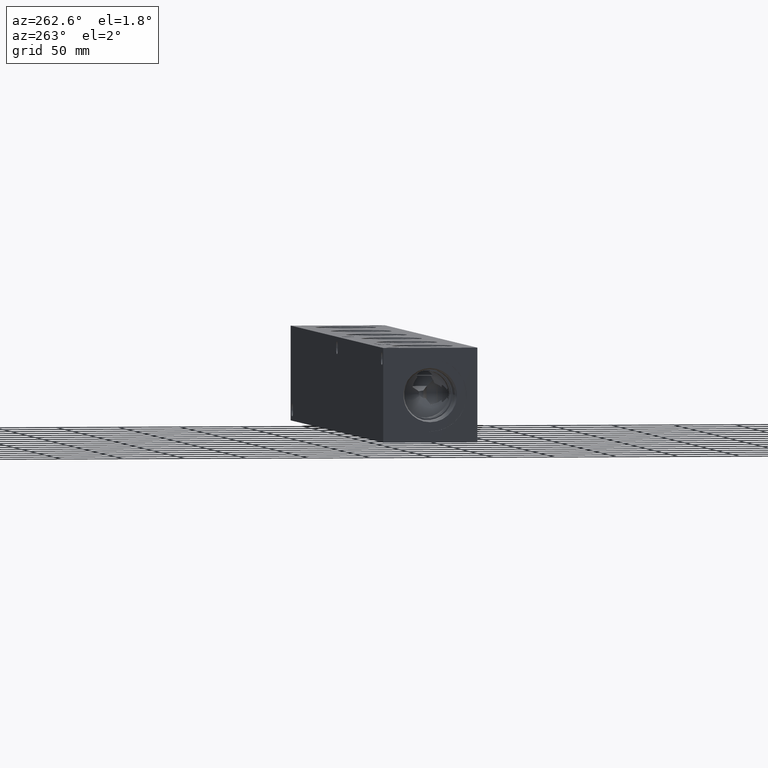
[diagram: clean part render]
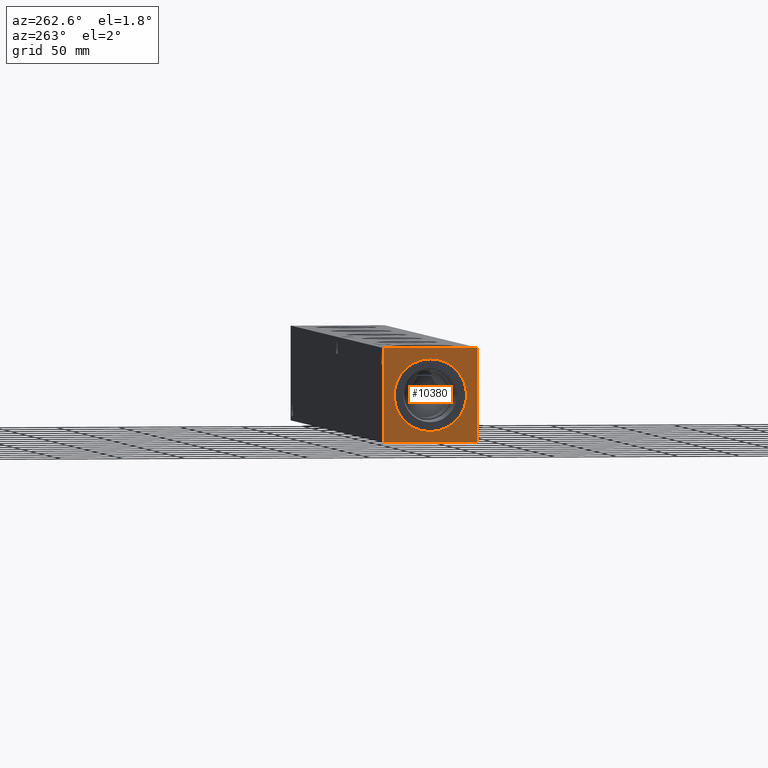
[diagram: same view with one face highlighted and labeled with its STEP entity id]
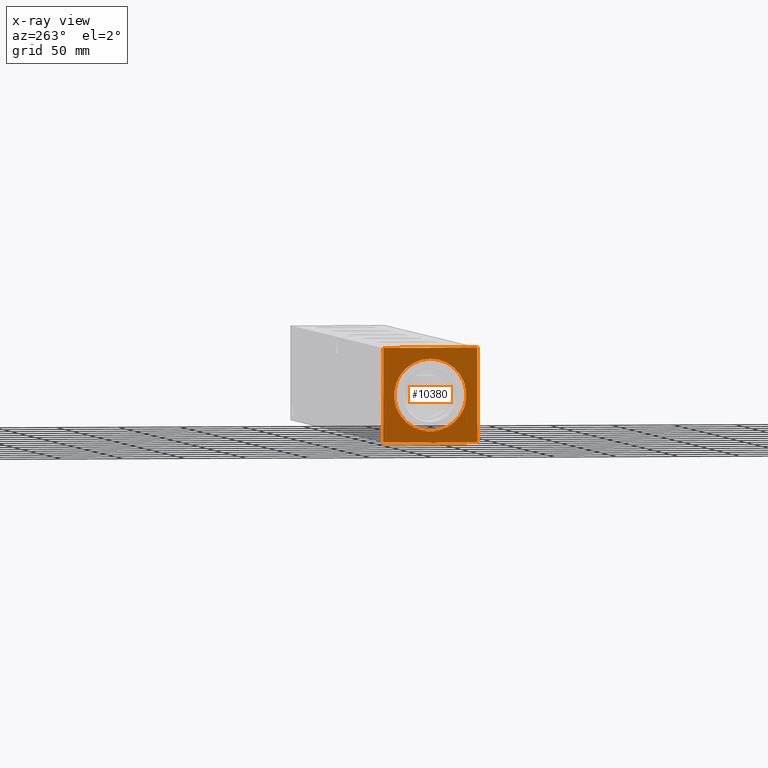
[diagram: x-ray of the same camera — body ghosted, the highlighted face saturated]
A machine part, auxiliary view. The second image highlights one B-rep face of the part: STEP entity #10380.
The next image is the same camera in x-ray: the body ghosted, the highlighted face saturated — about 0% of this face is hidden behind the body in this view.
In plain terms, the highlighted planar face has unit normal (-1, 0, 0).
Its self-contained STEP definition (entity closure, byte-faithful):
#578=CIRCLE('',#11181,29.2862);
#579=CIRCLE('',#11182,29.2862);
#649=FACE_BOUND('',#2264,.T.);
#1651=FACE_OUTER_BOUND('',#2263,.T.);
#2263=EDGE_LOOP('',(#9238,#9239,#9240,#9241));
#2264=EDGE_LOOP('',(#9242,#9243));
#2549=LINE('',#16000,#3335);
#3064=LINE('',#18792,#3850);
#3065=LINE('',#18793,#3851);
#3066=LINE('',#18794,#3852);
#3335=VECTOR('',#11588,10.);
#3850=VECTOR('',#13573,10.);
#3851=VECTOR('',#13574,10.);
#3852=VECTOR('',#13575,10.);
#4178=VERTEX_POINT('',#15993);
#4181=VERTEX_POINT('',#15998);
#4823=VERTEX_POINT('',#18761);
#4824=VERTEX_POINT('',#18762);
#4833=VERTEX_POINT('',#18790);
#4834=VERTEX_POINT('',#18791);
#5320=EDGE_CURVE('',#4181,#4178,#2549,.T.);
#6299=EDGE_CURVE('',#4823,#4824,#578,.T.);
#6300=EDGE_CURVE('',#4824,#4823,#579,.T.);
#6313=EDGE_CURVE('',#4833,#4834,#3064,.T.);
#6314=EDGE_CURVE('',#4834,#4178,#3065,.T.);
#6315=EDGE_CURVE('',#4833,#4181,#3066,.T.);
#9238=ORIENTED_EDGE('',*,*,#6313,.T.);
#9239=ORIENTED_EDGE('',*,*,#6314,.T.);
#9240=ORIENTED_EDGE('',*,*,#5320,.F.);
#9241=ORIENTED_EDGE('',*,*,#6315,.F.);
#9242=ORIENTED_EDGE('',*,*,#6299,.T.);
#9243=ORIENTED_EDGE('',*,*,#6300,.T.);
#9518=PLANE('',#11195);
#10380=ADVANCED_FACE('',(#1651,#649),#9518,.T.);
#11181=AXIS2_PLACEMENT_3D('',#18763,#13539,#13540);
#11182=AXIS2_PLACEMENT_3D('',#18764,#13541,#13542);
#11195=AXIS2_PLACEMENT_3D('',#18789,#13571,#13572);
#11588=DIRECTION('',(0.,-1.,0.));
#13539=DIRECTION('center_axis',(1.,0.,0.));
#13540=DIRECTION('ref_axis',(0.,0.,1.));
#13541=DIRECTION('center_axis',(1.,0.,0.));
#13542=DIRECTION('ref_axis',(0.,0.,1.));
#13571=DIRECTION('center_axis',(-1.,0.,0.));
#13572=DIRECTION('ref_axis',(0.,-1.,0.));
#13573=DIRECTION('',(0.,-1.,0.));
#13574=DIRECTION('',(0.,0.,1.));
#13575=DIRECTION('',(0.,0.,1.));
#15993=CARTESIAN_POINT('',(0.,0.,76.2));
#15998=CARTESIAN_POINT('',(0.,76.2,76.2));
#16000=CARTESIAN_POINT('',(0.,76.2,76.2));
#18761=CARTESIAN_POINT('',(0.,38.1,67.3862));
#18762=CARTESIAN_POINT('',(0.,38.1,8.8138));
#18763=CARTESIAN_POINT('Origin',(0.,38.1,38.1));
#18764=CARTESIAN_POINT('Origin',(0.,38.1,38.1));
#18789=CARTESIAN_POINT('Origin',(0.,76.2,0.));
#18790=CARTESIAN_POINT('',(0.,76.2,0.));
#18791=CARTESIAN_POINT('',(0.,0.,0.));
#18792=CARTESIAN_POINT('',(0.,76.2,0.));
#18793=CARTESIAN_POINT('',(0.,0.,0.));
#18794=CARTESIAN_POINT('',(0.,76.2,0.));